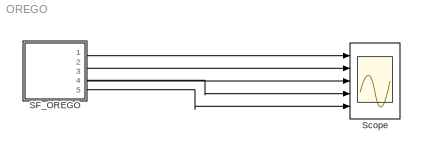
MODEL OREGO
KIND model
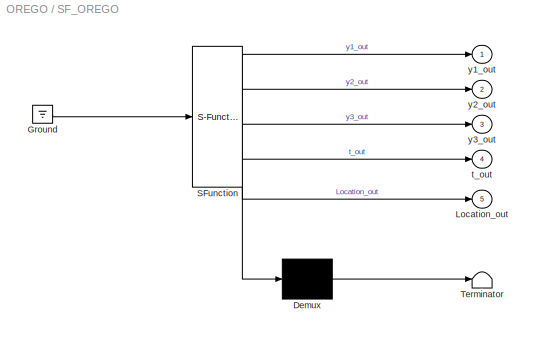
BLOCK [SubSystem] SF_OREGO
  ErrorFcn = Stateflow.Translate.translate
  PermitHierarchicalResolution = ExplicitOnly
  Ports = [0, 5]
  RequestExecContextInheritance = off
  SFBlockType = Chart
  SID = 1
  TreatAsAtomicUnit = on
BLOCK [Demux] SF_OREGO/ Demux 
  Outputs = 1
  Ports = [1, 1]
  SID = 1::83
BLOCK [Ground] SF_OREGO/ Ground 
  SID = 1::85
BLOCK [S-Function] SF_OREGO/ SFunction 
  EnableBusSupport = off
  FunctionName = sf_sfun
  PortCounts = [1 6]
  Ports = [1, 6]
  SFcnIsStateOwnerBlock = off
  SFunctionDeploymentMode = off
  SID = 1::82
  Tag = Stateflow S-Function 3
BLOCK [Terminator] SF_OREGO/ Terminator 
  SID = 1::84
BLOCK [Outport] SF_OREGO/Location_out
  IconDisplay = Port number
  Port = 5
  SID = 1::81
BLOCK [Outport] SF_OREGO/t_out
  IconDisplay = Port number
  Port = 4
  SID = 1::80
BLOCK [Outport] SF_OREGO/y1_out
  IconDisplay = Port number
  SID = 1::77
BLOCK [Outport] SF_OREGO/y2_out
  IconDisplay = Port number
  Port = 2
  SID = 1::78
BLOCK [Outport] SF_OREGO/y3_out
  IconDisplay = Port number
  Port = 3
  SID = 1::79
BLOCK [Scope] Scope
  Floating = off
  NumInputPorts = 5
  Ports = [5]
  SID = 2
  ScopeSpecificationString = C++SS(StrPVP('Location','[188, 365, 512, 604]'),StrPVP('Open','off'),MxPVP('AxesTitles',54,'struct(''axes1'',''%<SignalLabel>'',''axes2'',''%<SignalLabel>'',''axes3'',''%<SignalLabel>'',''axes4'',''%<SignalLabel>'',''axes5'',''%<SignalLabel>'')'),StrPVP('SaveToWorkspace','on'),StrPVP('DataFormat','Structure'),StrPVP('LimitDataPoints','off'),StrPVP('Decimation','1'),StrPVP('BlockParamSampleInput','...<+6ch>
LINE SF_OREGO/ Demux :1 -> SF_OREGO/ Terminator :1
LINE SF_OREGO/ Ground :1 -> SF_OREGO/ SFunction :1
LINE SF_OREGO/ SFunction :1 -> SF_OREGO/ Demux :1
LINE SF_OREGO/ SFunction :2 -> SF_OREGO/y1_out:1
LINE SF_OREGO/ SFunction :3 -> SF_OREGO/y2_out:1
LINE SF_OREGO/ SFunction :4 -> SF_OREGO/y3_out:1
LINE SF_OREGO/ SFunction :5 -> SF_OREGO/t_out:1
LINE SF_OREGO/ SFunction :6 -> SF_OREGO/Location_out:1
LINE SF_OREGO:1 -> Scope:1
LINE SF_OREGO:2 -> Scope:2
LINE SF_OREGO:3 -> Scope:3
LINE SF_OREGO:4 -> Scope:4
LINE SF_OREGO:5 -> Scope:5
CHART SF_OREGO states=1 transitions=1
  STATE_LABEL 'OREGO\\ndu:\\ny1_dot = s * (y2 - y1 * y2 + y1 - q * y1 ^ 2.0);\\ny2_dot = 1.0 / s * (-y2 - y1 * y2 + y3);\\ny3_dot = w * (y1 - y3);\\nt_dot = 1.0;\\ny1_out=y1;\\ny2_out=y2;\\ny3_out=y3;\\nt_out=t;\\nLocation_out =1;'
